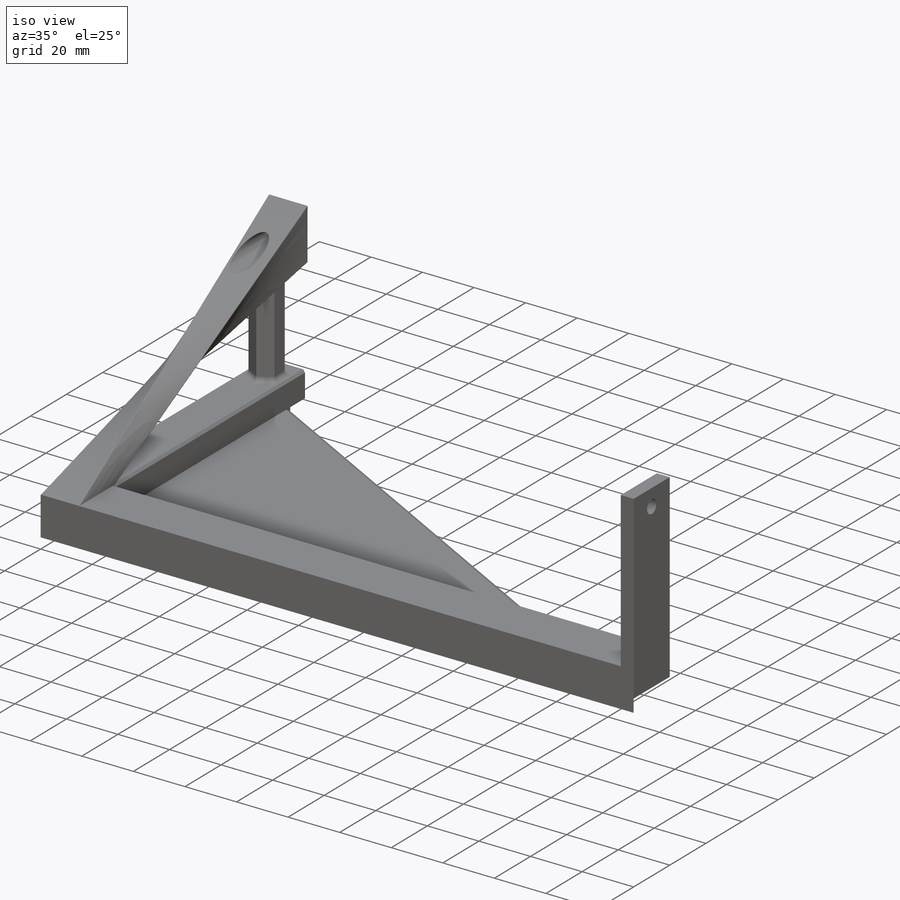
[diagram: iso view]
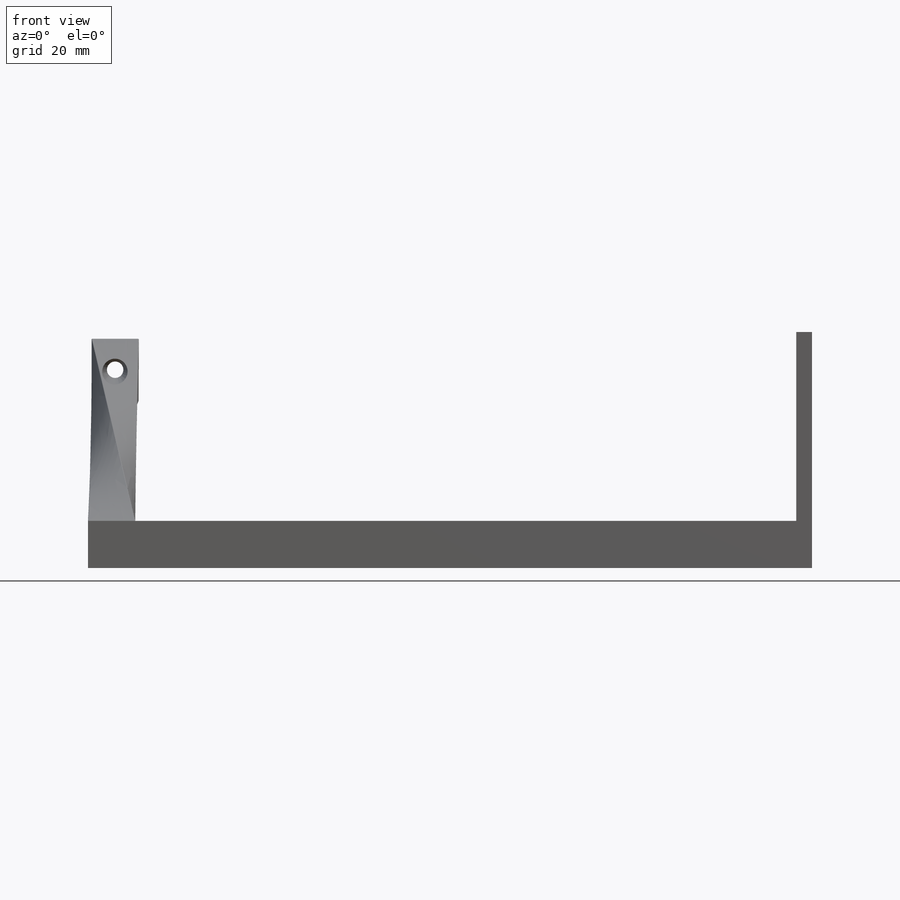
[diagram: front view]
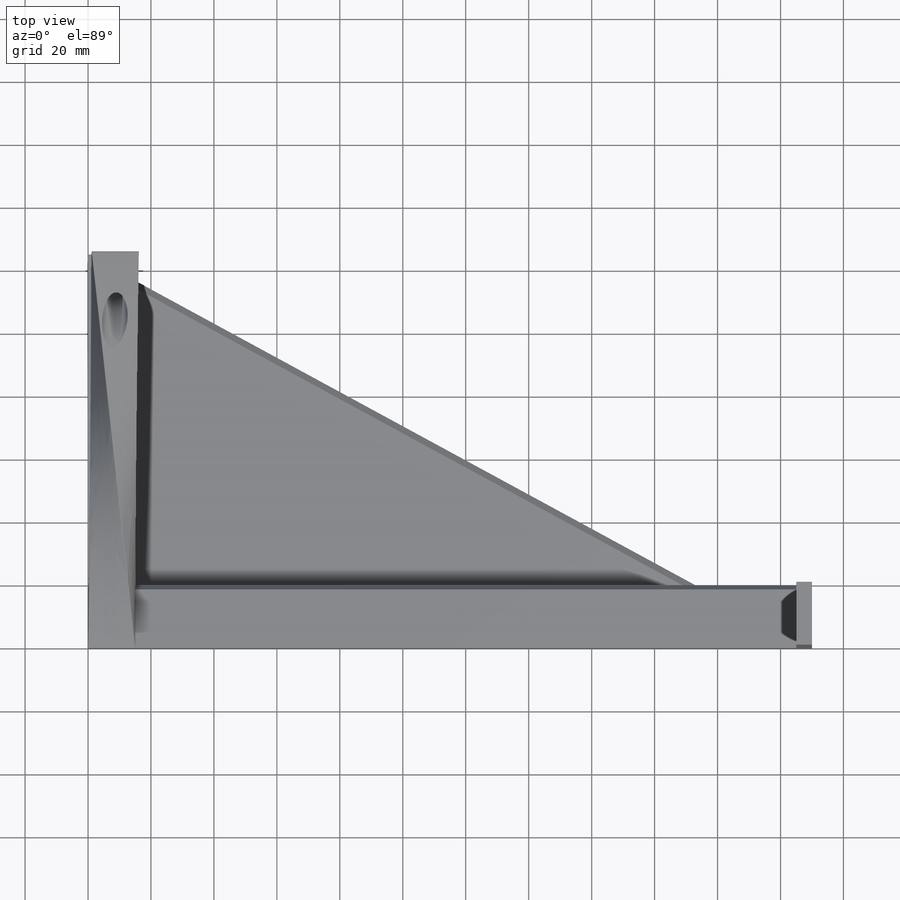
[diagram: top view]
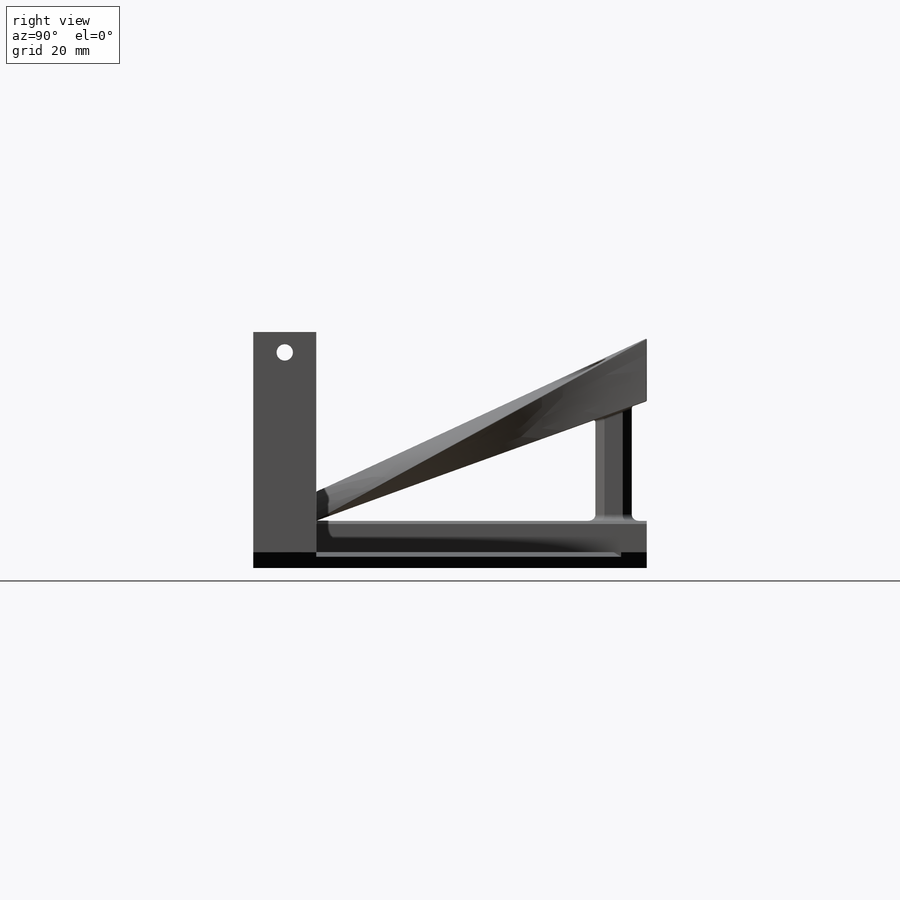
[diagram: right view]
SOLIDWORKS PART (.sldprt)
format: sldprt  version: not decoded by parser v0  size: 409,088 bytes
history: native  units: mm
features: sketch x7, extrude x4, chamfer x4, fillet x3, material x1, plane x1, cut_extrude x1 (+13 scaffold rows collapsed)
feature tree (34):
  scaffold x13  (default folders/planes/origin — collapsed)
  material  "Material <not specified>"
  sketch  "Sketch1"  dims[D1=15.0mm D2=20.0mm D3=225.0mm D4=125.0mm]
  extrude  "Boss-Extrude1"  Depth=10mm
  plane  "Frame Plane"
  sketch  "Sketch4"  dims[D1=15.0mm D2=70.0mm D3=63.5mm]
  extrude  "Boss-Extrude3"  Depth=5mm
  sketch  "Sketch5"
  sketch  "Sketch6"  dims[D1=15.0mm D2=20.0mm]
  extrude  "Boss-Extrude5"  Depth=5mm
  sketch  "Sketch7"  dims[D1=63.0mm D2=20.0mm D3=15.0mm]
  sketch  "Sketch8"  dims[D1=5.2mm]
  cut_extrude  "Cut-Extrude1"  [1 undecoded]
  sketch  "Sketch9"  dims[D1=10.0mm]
  extrude  "Boss-Extrude7"  Depth=40mm
  fillet  "Fillet3"  Radius=2mm
  fillet  "Fillet4"  Radius=1mm
  fillet  "Fillet5"  Radius=0.25mm
  chamfer  "Chamfer2"  Distance=0.25mm Angle=45deg
  chamfer  "Chamfer3"  Distance=1mm Angle=35deg
  chamfer  "Chamfer4"  Distance=2mm Angle=35deg
  chamfer  "Chamfer5"  Distance=2mm Angle=35deg
decode coverage: 17 of 19 modeling features carry decoded parameters
note: 1 parameter value undecoded
note: suppression state not decoded; provenance and decode notes live in map.json
